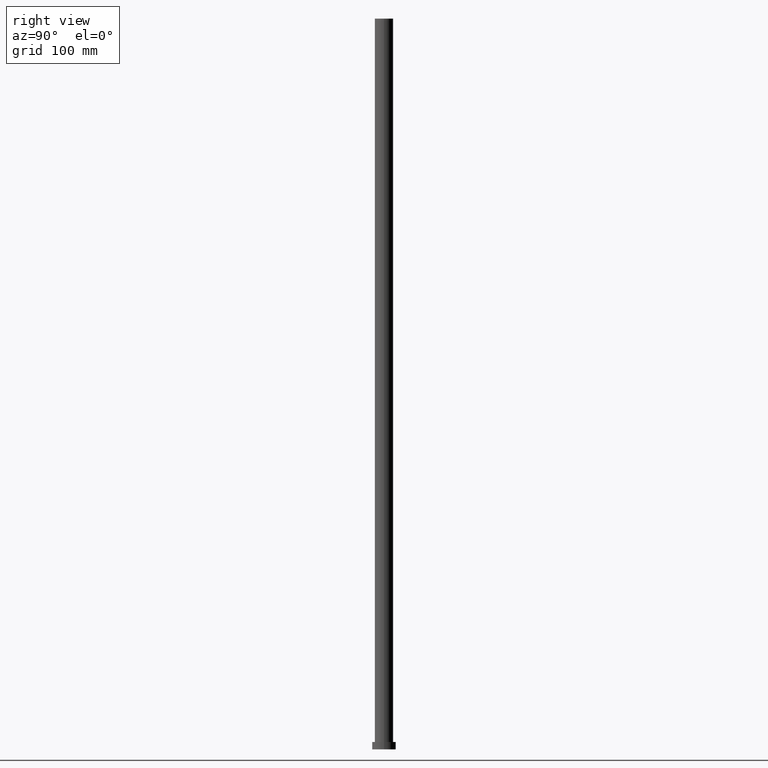
[diagram: clean part render]
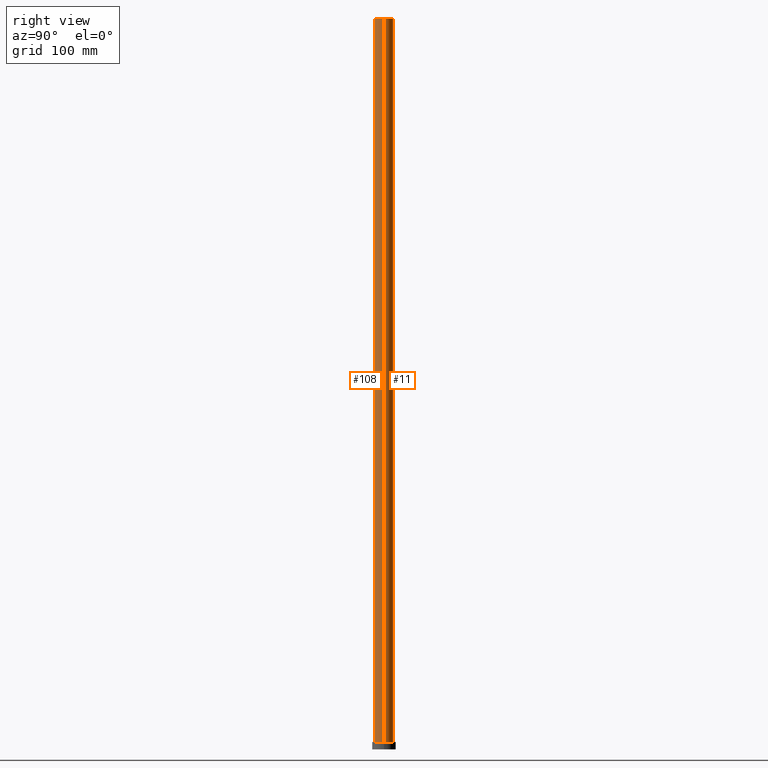
[diagram: same view with one multi-face feature highlighted, each face labeled with its STEP entity id]
A machine part, right view. The highlighted faces form ONE feature: a constant-radius fillet chain: 2 tangent blend faces with common blend radius 10 mm. The faces share edges in the B-rep.
Their STEP definitions:
[1] entity #11 (Cylinder):
#1 = CARTESIAN_POINT ( 'NONE',  ( 10.00000000000000000, 1.224646799147353256E-15, 800.0000000000000000 ) ) ;
#9 = CARTESIAN_POINT ( 'NONE',  ( -10.00000000000000000, 0.000000000000000000, 800.0000000000000000 ) ) ;
#11 = ADVANCED_FACE ( 'NONE', ( #36 ), #179, .T. ) ;
#22 = LINE ( 'NONE', #23, #228 ) ;
#23 = CARTESIAN_POINT ( 'NONE',  ( 10.00000000000000000, 1.224646799147353256E-15, 800.0000000000000000 ) ) ;
#24 = DIRECTION ( 'NONE',  ( 1.000000000000000000, 0.000000000000000000, 0.000000000000000000 ) ) ;
#29 = ORIENTED_EDGE ( 'NONE', *, *, #47, .T. ) ;
#36 = FACE_OUTER_BOUND ( 'NONE', #229, .T. ) ;
#47 = EDGE_CURVE ( 'NONE', #55, #57, #22, .T. ) ;
#51 = CARTESIAN_POINT ( 'NONE',  ( -10.00000000000000000, 0.000000000000000000, 800.0000000000000000 ) ) ;
#55 = VERTEX_POINT ( 'NONE', #1 ) ;
#57 = VERTEX_POINT ( 'NONE', #174 ) ;
#65 = DIRECTION ( 'NONE',  ( 1.000000000000000000, 0.000000000000000000, 0.000000000000000000 ) ) ;
#67 = DIRECTION ( 'NONE',  ( 0.000000000000000000, 0.000000000000000000, 1.000000000000000000 ) ) ;
#74 = ORIENTED_EDGE ( 'NONE', *, *, #87, .F. ) ;
#76 = ORIENTED_EDGE ( 'NONE', *, *, #82, .T. ) ;
#77 = DIRECTION ( 'NONE',  ( -0.000000000000000000, -0.000000000000000000, -1.000000000000000000 ) ) ;
#82 = EDGE_CURVE ( 'NONE', #57, #185, #187, .T. ) ;
#83 = AXIS2_PLACEMENT_3D ( 'NONE', #105, #93, #24 ) ;
#87 = EDGE_CURVE ( 'NONE', #55, #92, #218, .T. ) ;
#92 = VERTEX_POINT ( 'NONE', #51 ) ;
#93 = DIRECTION ( 'NONE',  ( 0.000000000000000000, 0.000000000000000000, 1.000000000000000000 ) ) ;
#101 = DIRECTION ( 'NONE',  ( -0.000000000000000000, -0.000000000000000000, -1.000000000000000000 ) ) ;
#105 = CARTESIAN_POINT ( 'NONE',  ( 0.000000000000000000, 0.000000000000000000, 8.000000000000000000 ) ) ;
#121 = DIRECTION ( 'NONE',  ( -1.000000000000000000, 0.000000000000000000, 0.000000000000000000 ) ) ;
#125 = DIRECTION ( 'NONE',  ( -0.000000000000000000, -0.000000000000000000, -1.000000000000000000 ) ) ;
#140 = EDGE_CURVE ( 'NONE', #92, #185, #143, .T. ) ;
#143 = LINE ( 'NONE', #9, #214 ) ;
#145 = AXIS2_PLACEMENT_3D ( 'NONE', #147, #67, #65 ) ;
#146 = CARTESIAN_POINT ( 'NONE',  ( 0.000000000000000000, 0.000000000000000000, 800.0000000000000000 ) ) ;
#147 = CARTESIAN_POINT ( 'NONE',  ( 0.000000000000000000, 0.000000000000000000, 800.0000000000000000 ) ) ;
#158 = AXIS2_PLACEMENT_3D ( 'NONE', #146, #77, #121 ) ;
#174 = CARTESIAN_POINT ( 'NONE',  ( 10.00000000000000000, 1.224646799147353256E-15, 8.000000000000000000 ) ) ;
#176 = CARTESIAN_POINT ( 'NONE',  ( -10.00000000000000000, 0.000000000000000000, 8.000000000000000000 ) ) ;
#179 = CYLINDRICAL_SURFACE ( 'NONE', #158, 10.00000000000000000 ) ;
#185 = VERTEX_POINT ( 'NONE', #176 ) ;
#187 = CIRCLE ( 'NONE', #83, 10.00000000000000000 ) ;
#214 = VECTOR ( 'NONE', #125, 1000.000000000000000 ) ;
#218 = CIRCLE ( 'NONE', #145, 10.00000000000000000 ) ;
#219 = ORIENTED_EDGE ( 'NONE', *, *, #140, .F. ) ;
#228 = VECTOR ( 'NONE', #101, 1000.000000000000000 ) ;
#229 = EDGE_LOOP ( 'NONE', ( #74, #29, #76, #219 ) ) ;
[2] entity #108 (Cylinder):
#1 = CARTESIAN_POINT ( 'NONE',  ( 10.00000000000000000, 1.224646799147353256E-15, 800.0000000000000000 ) ) ;
#2 = CARTESIAN_POINT ( 'NONE',  ( 0.000000000000000000, 0.000000000000000000, 800.0000000000000000 ) ) ;
#5 = CYLINDRICAL_SURFACE ( 'NONE', #59, 10.00000000000000000 ) ;
#6 = AXIS2_PLACEMENT_3D ( 'NONE', #102, #88, #244 ) ;
#7 = CARTESIAN_POINT ( 'NONE',  ( 0.000000000000000000, 0.000000000000000000, 800.0000000000000000 ) ) ;
#9 = CARTESIAN_POINT ( 'NONE',  ( -10.00000000000000000, 0.000000000000000000, 800.0000000000000000 ) ) ;
#10 = EDGE_LOOP ( 'NONE', ( #224, #127, #52, #16 ) ) ;
#16 = ORIENTED_EDGE ( 'NONE', *, *, #130, .T. ) ;
#22 = LINE ( 'NONE', #23, #228 ) ;
#23 = CARTESIAN_POINT ( 'NONE',  ( 10.00000000000000000, 1.224646799147353256E-15, 800.0000000000000000 ) ) ;
#28 = FACE_OUTER_BOUND ( 'NONE', #10, .T. ) ;
#42 = CIRCLE ( 'NONE', #237, 10.00000000000000000 ) ;
#47 = EDGE_CURVE ( 'NONE', #55, #57, #22, .T. ) ;
#51 = CARTESIAN_POINT ( 'NONE',  ( -10.00000000000000000, 0.000000000000000000, 800.0000000000000000 ) ) ;
#52 = ORIENTED_EDGE ( 'NONE', *, *, #140, .T. ) ;
#55 = VERTEX_POINT ( 'NONE', #1 ) ;
#57 = VERTEX_POINT ( 'NONE', #174 ) ;
#59 = AXIS2_PLACEMENT_3D ( 'NONE', #7, #144, #217 ) ;
#64 = EDGE_CURVE ( 'NONE', #92, #55, #42, .T. ) ;
#88 = DIRECTION ( 'NONE',  ( 0.000000000000000000, 0.000000000000000000, 1.000000000000000000 ) ) ;
#92 = VERTEX_POINT ( 'NONE', #51 ) ;
#101 = DIRECTION ( 'NONE',  ( -0.000000000000000000, -0.000000000000000000, -1.000000000000000000 ) ) ;
#102 = CARTESIAN_POINT ( 'NONE',  ( 0.000000000000000000, 0.000000000000000000, 8.000000000000000000 ) ) ;
#108 = ADVANCED_FACE ( 'NONE', ( #28 ), #5, .T. ) ;
#125 = DIRECTION ( 'NONE',  ( -0.000000000000000000, -0.000000000000000000, -1.000000000000000000 ) ) ;
#127 = ORIENTED_EDGE ( 'NONE', *, *, #64, .F. ) ;
#130 = EDGE_CURVE ( 'NONE', #185, #57, #210, .T. ) ;
#140 = EDGE_CURVE ( 'NONE', #92, #185, #143, .T. ) ;
#141 = DIRECTION ( 'NONE',  ( 0.000000000000000000, 0.000000000000000000, 1.000000000000000000 ) ) ;
#143 = LINE ( 'NONE', #9, #214 ) ;
#144 = DIRECTION ( 'NONE',  ( -0.000000000000000000, -0.000000000000000000, -1.000000000000000000 ) ) ;
#174 = CARTESIAN_POINT ( 'NONE',  ( 10.00000000000000000, 1.224646799147353256E-15, 8.000000000000000000 ) ) ;
#176 = CARTESIAN_POINT ( 'NONE',  ( -10.00000000000000000, 0.000000000000000000, 8.000000000000000000 ) ) ;
#185 = VERTEX_POINT ( 'NONE', #176 ) ;
#210 = CIRCLE ( 'NONE', #6, 10.00000000000000000 ) ;
#214 = VECTOR ( 'NONE', #125, 1000.000000000000000 ) ;
#215 = DIRECTION ( 'NONE',  ( 1.000000000000000000, 0.000000000000000000, 0.000000000000000000 ) ) ;
#217 = DIRECTION ( 'NONE',  ( -1.000000000000000000, 0.000000000000000000, 0.000000000000000000 ) ) ;
#224 = ORIENTED_EDGE ( 'NONE', *, *, #47, .F. ) ;
#228 = VECTOR ( 'NONE', #101, 1000.000000000000000 ) ;
#237 = AXIS2_PLACEMENT_3D ( 'NONE', #2, #141, #215 ) ;
#244 = DIRECTION ( 'NONE',  ( 1.000000000000000000, 0.000000000000000000, 0.000000000000000000 ) ) ;